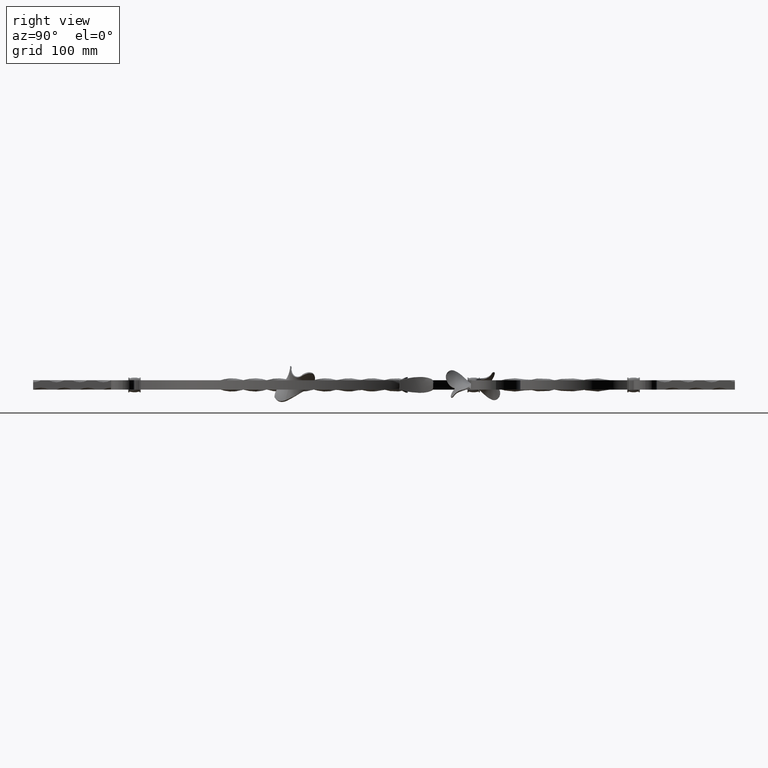
[diagram: clean part render]
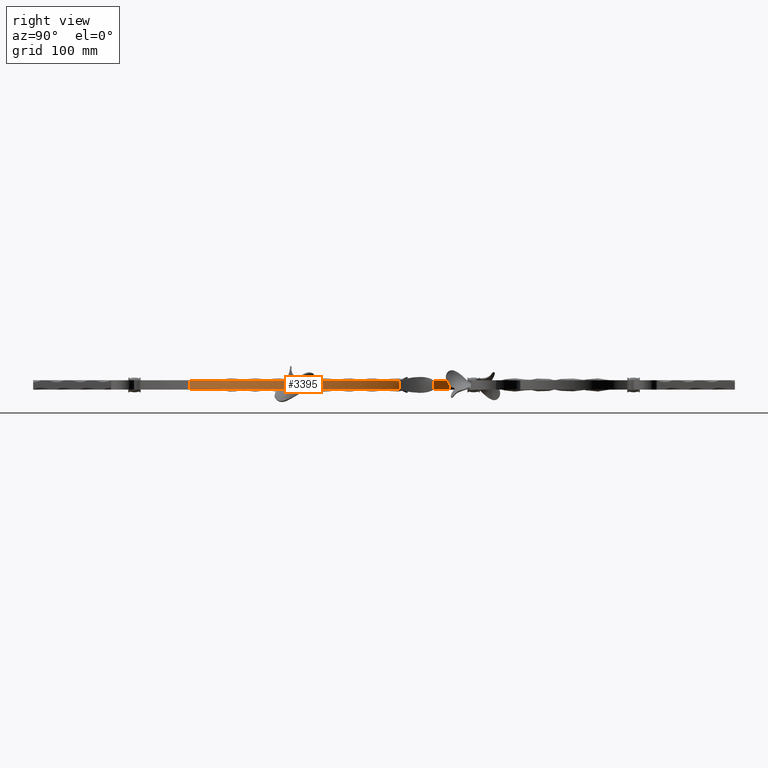
[diagram: same view with one face highlighted and labeled with its STEP entity id]
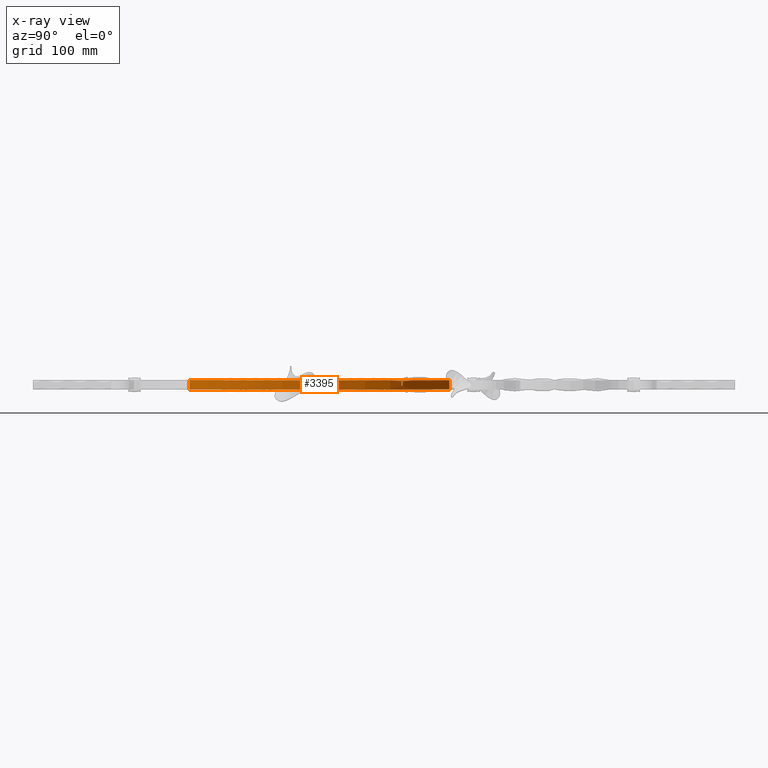
[diagram: x-ray of the same camera — body ghosted, the highlighted face saturated]
A machine part, right view. The second image highlights one B-rep face of the part: STEP entity #3395.
The next image is the same camera in x-ray: the body ghosted, the highlighted face saturated — about 0% of this face is hidden behind the body in this view.
In plain terms, the highlighted cylindrical surface (partial cylindrical patch) has radius 200.625 mm, axis along (-0, -0, -1).
Its self-contained STEP definition (entity closure, byte-faithful):
#236 = CIRCLE ( 'NONE', #22569, 200.6245386149037415 ) ;
#265 = EDGE_LOOP ( 'NONE', ( #44857, #30367, #7814, #26563 ) ) ;
#615 = AXIS2_PLACEMENT_3D ( 'NONE', #24571, #28837, #45721 ) ;
#741 = DIRECTION ( 'NONE',  ( -0.000000000000000000, -0.000000000000000000, -1.000000000000000000 ) ) ;
#2184 = FACE_BOUND ( 'NONE', #43418, .T. ) ;
#2805 = DIRECTION ( 'NONE',  ( 0.000000000000000000, 0.000000000000000000, 1.000000000000000000 ) ) ;
#3395 = ADVANCED_FACE ( 'NONE', ( #2184, #23447 ), #4125, .T. ) ;
#4125 = CYLINDRICAL_SURFACE ( 'NONE', #41545, 200.6245386149037415 ) ;
#5073 = CARTESIAN_POINT ( 'NONE',  ( -70.62453861500259222, -90.29945903481983294, -6.000000000000000000 ) ) ;
#5767 = CARTESIAN_POINT ( 'NONE',  ( 51.63238933652131379, -249.3700379056433860, -6.000000000000000000 ) ) ;
#5988 = CARTESIAN_POINT ( 'NONE',  ( 51.63238933652131379, -249.3700379056433860, 6.000000000000000000 ) ) ;
#6764 = AXIS2_PLACEMENT_3D ( 'NONE', #53266, #27633, #28014 ) ;
#7814 = ORIENTED_EDGE ( 'NONE', *, *, #27435, .T. ) ;
#8568 = LINE ( 'NONE', #34794, #20534 ) ;
#8737 = DIRECTION ( 'NONE',  ( 0.4972331834549500451, 0.8676169438590143335, 0.000000000000000000 ) ) ;
#9257 = VERTEX_POINT ( 'NONE', #37381 ) ;
#9368 = DIRECTION ( 'NONE',  ( 0.4972331834549500451, 0.8676169438590143335, 0.000000000000000000 ) ) ;
#9724 = VERTEX_POINT ( 'NONE', #5988 ) ;
#9958 = EDGE_CURVE ( 'NONE', #9257, #42288, #38345, .T. ) ;
#10726 = EDGE_CURVE ( 'NONE', #35819, #18473, #53601, .T. ) ;
#11182 = DIRECTION ( 'NONE',  ( 0.000000000000000000, 0.000000000000000000, 1.000000000000000000 ) ) ;
#11320 = LINE ( 'NONE', #41025, #29902 ) ;
#12505 = LINE ( 'NONE', #47244, #45066 ) ;
#12561 = EDGE_CURVE ( 'NONE', #43610, #9724, #21167, .T. ) ;
#13092 = CARTESIAN_POINT ( 'NONE',  ( 94.50322332937693659, 23.64363083763941020, -0.9999999999999991118 ) ) ;
#13684 = LINE ( 'NONE', #45484, #15714 ) ;
#14628 = VERTEX_POINT ( 'NONE', #53744 ) ;
#15714 = VECTOR ( 'NONE', #2805, 1000.000000000000000 ) ;
#16090 = CARTESIAN_POINT ( 'NONE',  ( 95.06911399149451825, 22.81914677487452181, -0.9999999999999991118 ) ) ;
#17680 = CARTESIAN_POINT ( 'NONE',  ( -70.62453861500259222, -90.29945903481983294, 6.000000000000000000 ) ) ;
#17940 = DIRECTION ( 'NONE',  ( -0.000000000000000000, -0.000000000000000000, -1.000000000000000000 ) ) ;
#18426 = EDGE_CURVE ( 'NONE', #26920, #9724, #8568, .T. ) ;
#18473 = VERTEX_POINT ( 'NONE', #13092 ) ;
#20534 = VECTOR ( 'NONE', #38319, 1000.000000000000000 ) ;
#20654 = ORIENTED_EDGE ( 'NONE', *, *, #52756, .F. ) ;
#21167 = CIRCLE ( 'NONE', #24828, 200.6245386149037415 ) ;
#21631 = DIRECTION ( 'NONE',  ( -1.000000000000000000, 0.000000000000000000, 0.000000000000000000 ) ) ;
#22569 = AXIS2_PLACEMENT_3D ( 'NONE', #5073, #17940, #9368 ) ;
#22577 = CARTESIAN_POINT ( 'NONE',  ( -70.62453861500259222, -90.29945903481983294, 0.000000000000000000 ) ) ;
#23447 = FACE_OUTER_BOUND ( 'NONE', #265, .T. ) ;
#24571 = CARTESIAN_POINT ( 'NONE',  ( -70.62453861500259222, -90.29945903481983294, -0.9999999999999991118 ) ) ;
#24828 = AXIS2_PLACEMENT_3D ( 'NONE', #17680, #741, #8737 ) ;
#26515 = CARTESIAN_POINT ( 'NONE',  ( 95.06911399142359187, 22.81914677504796884, 4.000000000000000888 ) ) ;
#26563 = ORIENTED_EDGE ( 'NONE', *, *, #12561, .T. ) ;
#26920 = VERTEX_POINT ( 'NONE', #5767 ) ;
#27435 = EDGE_CURVE ( 'NONE', #14628, #43610, #12505, .T. ) ;
#27633 = DIRECTION ( 'NONE',  ( -0.000000000000000000, 0.000000000000000000, -1.000000000000000000 ) ) ;
#28014 = DIRECTION ( 'NONE',  ( 1.000000000000000000, -7.584812125338954305E-13, 0.000000000000000000 ) ) ;
#28837 = DIRECTION ( 'NONE',  ( -0.000000000000000000, -0.000000000000000000, 1.000000000000000000 ) ) ;
#29524 = CARTESIAN_POINT ( 'NONE',  ( 29.13263939958855531, 83.76579002123176565, 6.000000000000000000 ) ) ;
#29902 = VECTOR ( 'NONE', #11182, 1000.000000000000000 ) ;
#30367 = ORIENTED_EDGE ( 'NONE', *, *, #55075, .F. ) ;
#34258 = DIRECTION ( 'NONE',  ( -0.000000000000000000, 0.000000000000000000, 1.000000000000000000 ) ) ;
#34794 = CARTESIAN_POINT ( 'NONE',  ( 51.63238933652131379, -249.3700379056433860, 6.000000000000000000 ) ) ;
#35819 = VERTEX_POINT ( 'NONE', #16090 ) ;
#37381 = CARTESIAN_POINT ( 'NONE',  ( 94.50322332937693659, 23.64363083763941020, 4.000000000000000888 ) ) ;
#38319 = DIRECTION ( 'NONE',  ( 0.000000000000000000, -0.000000000000000000, 1.000000000000000000 ) ) ;
#38345 = CIRCLE ( 'NONE', #6764, 200.6245386149037415 ) ;
#38480 = ORIENTED_EDGE ( 'NONE', *, *, #10726, .F. ) ;
#39131 = EDGE_CURVE ( 'NONE', #35819, #42288, #11320, .T. ) ;
#41025 = CARTESIAN_POINT ( 'NONE',  ( 95.06911399149451825, 22.81914677487452181, 4.000000000000000888 ) ) ;
#41545 = AXIS2_PLACEMENT_3D ( 'NONE', #22577, #47025, #21631 ) ;
#42288 = VERTEX_POINT ( 'NONE', #26515 ) ;
#43418 = EDGE_LOOP ( 'NONE', ( #52862, #20654, #38480, #52785 ) ) ;
#43610 = VERTEX_POINT ( 'NONE', #29524 ) ;
#44857 = ORIENTED_EDGE ( 'NONE', *, *, #18426, .F. ) ;
#45066 = VECTOR ( 'NONE', #34258, 1000.000000000000000 ) ;
#45484 = CARTESIAN_POINT ( 'NONE',  ( 94.50322332937693659, 23.64363083763941376, 0.000000000000000000 ) ) ;
#45721 = DIRECTION ( 'NONE',  ( -1.000000000000000000, 0.000000000000000000, 0.000000000000000000 ) ) ;
#47025 = DIRECTION ( 'NONE',  ( -0.000000000000000000, -0.000000000000000000, -1.000000000000000000 ) ) ;
#47244 = CARTESIAN_POINT ( 'NONE',  ( 29.13263939958854465, 83.76579002123175144, 6.000000000000000000 ) ) ;
#52756 = EDGE_CURVE ( 'NONE', #18473, #9257, #13684, .T. ) ;
#52785 = ORIENTED_EDGE ( 'NONE', *, *, #39131, .T. ) ;
#52862 = ORIENTED_EDGE ( 'NONE', *, *, #9958, .F. ) ;
#53266 = CARTESIAN_POINT ( 'NONE',  ( -70.62453861500259222, -90.29945903481983294, 4.000000000000000888 ) ) ;
#53601 = CIRCLE ( 'NONE', #615, 200.6245386149037415 ) ;
#53744 = CARTESIAN_POINT ( 'NONE',  ( 29.13263939958855531, 83.76579002123176565, -6.000000000000000000 ) ) ;
#55075 = EDGE_CURVE ( 'NONE', #14628, #26920, #236, .T. ) ;